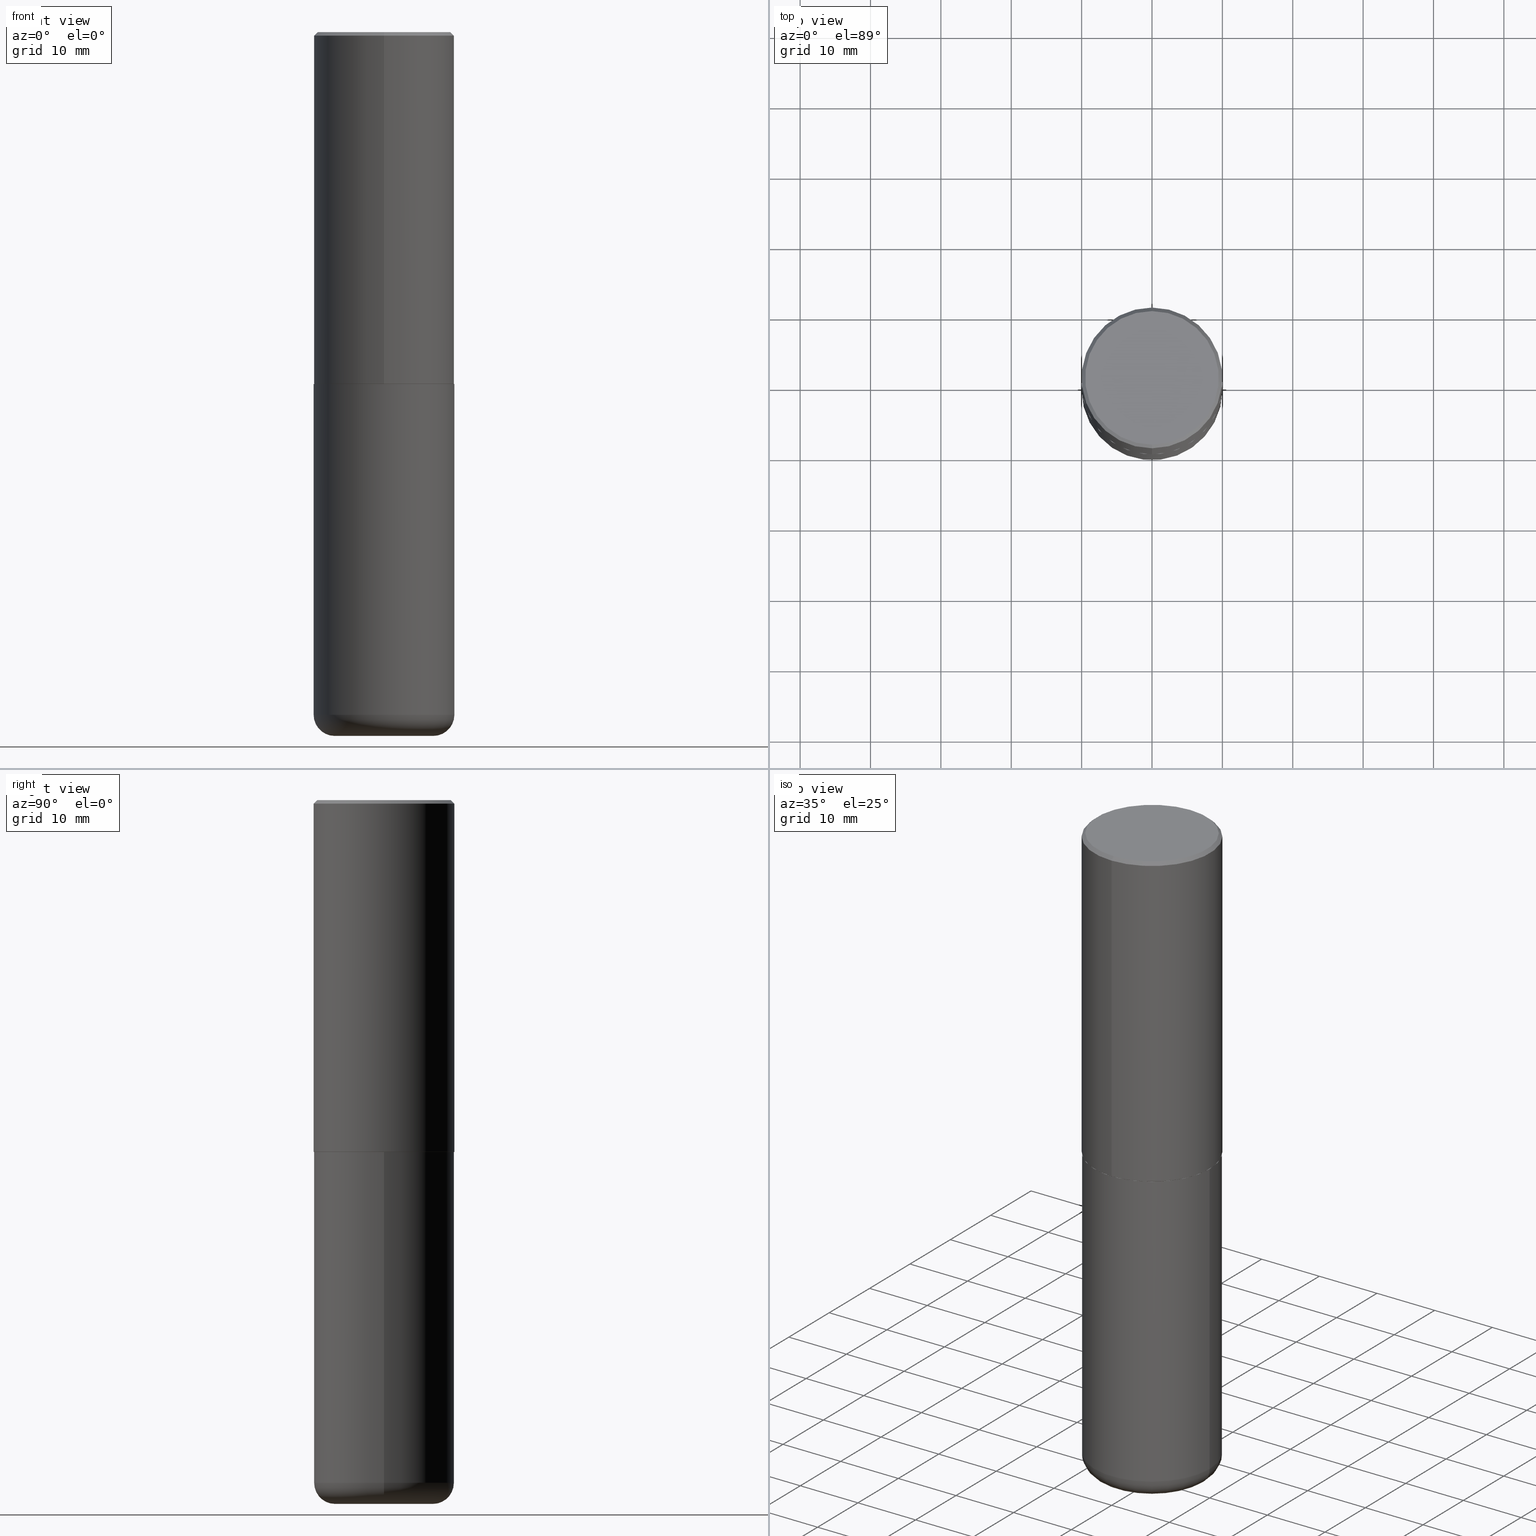
[diagram: canonical four-view strip — front | top / right | iso, engineering-drawing reading convention]
A machine part, canonical four-view strip (front | top / right | iso — engineering-drawing reading convention). The complete STEP part file that produces these views, byte-faithful:
ISO-10303-21;
HEADER;
FILE_DESCRIPTION (( 'STEP AP203' ),
    '1' );
FILE_NAME ('74651.STEP',
    '2024-03-06T15:51:51',
    ( '' ),
    ( '' ),
    'SwSTEP 2.0',
    'SolidWorks 2023',
    '' );
FILE_SCHEMA (( 'CONFIG_CONTROL_DESIGN' ));
ENDSEC;

DATA;
#1 = ADVANCED_FACE ( 'NONE', ( #131 ), #122, .F. ) ;
#2 = LINE ( 'NONE', #202, #216 ) ;
#3 = APPROVAL_PERSON_ORGANIZATION ( #313, #221, #405 ) ;
#4 = LOCAL_TIME ( 10, 51, 51.00000000000000000, #341 ) ;
#5 = PERSON_AND_ORGANIZATION_ROLE ( 'creator' ) ;
#6 = DIRECTION ( 'NONE',  ( -2.447902336346030930E-29, 3.487996385144809755E-15, 1.000000000000000000 ) ) ;
#7 = EDGE_CURVE ( 'NONE', #312, #61, #301, .T. ) ;
#8 = DATE_AND_TIME ( #64, #380 ) ;
#9 = CALENDAR_DATE ( 2024, 6, 3 ) ;
#10 = MANIFOLD_SOLID_BREP ( 'Body-Move/Copy2[1]', #310 ) ;
#11 = DIRECTION ( 'NONE',  ( 1.000000000000000000, -6.982962677686268288E-15, 4.883557194083112901E-29 ) ) ;
#12 = AXIS2_PLACEMENT_3D ( 'NONE', #68, #192, #317 ) ;
#13 = ORIENTED_EDGE ( 'NONE', *, *, #346, .F. ) ;
#14 = CARTESIAN_POINT ( 'NONE',  ( 4.818695749097162682E-29, -6.866120884157559141E-15, -1.968500000000000361 ) ) ;
#15 = VERTEX_POINT ( 'NONE', #129 ) ;
#16 = EDGE_LOOP ( 'NONE', ( #305, #397, #271, #363 ) ) ;
#17 = AXIS2_PLACEMENT_3D ( 'NONE', #347, #187, #23 ) ;
#18 = AXIS2_PLACEMENT_3D ( 'NONE', #382, #95, #65 ) ;
#19 = ORIENTED_EDGE ( 'NONE', *, *, #302, .T. ) ;
#20 = CC_DESIGN_PERSON_AND_ORGANIZATION_ASSIGNMENT ( #396, #42, ( #350 ) ) ;
#21 = CARTESIAN_POINT ( 'NONE',  ( 4.818695749097162682E-29, -6.866120884157559141E-15, -1.968500000000000361 ) ) ;
#22 = LINE ( 'NONE', #349, #233 ) ;
#23 = DIRECTION ( 'NONE',  ( 6.982962677686265922E-15, 1.000000000000000000, -3.487996385144809360E-15 ) ) ;
#24 = AXIS2_PLACEMENT_3D ( 'NONE', #158, #258, #222 ) ;
#25 = AXIS2_PLACEMENT_3D ( 'NONE', #197, #275, #251 ) ;
#26 = EDGE_CURVE ( 'NONE', #348, #312, #384, .T. ) ;
#27 = CARTESIAN_POINT ( 'NONE',  ( -2.632373081744936315E-15, -0.3737000000000000322, 1.238134234580041113E-15 ) ) ;
#28 = LINE ( 'NONE', #407, #203 ) ;
#29 = DIRECTION ( 'NONE',  ( -6.982962677686265922E-15, -1.000000000000000000, 3.487996385144809755E-15 ) ) ;
#30 = DIRECTION ( 'NONE',  ( -6.982962677686265133E-15, -1.000000000000000000, 3.478288761986584267E-15 ) ) ;
#31 = DIRECTION ( 'NONE',  ( -2.445468806185136597E-29, 3.491481338843145583E-15, 1.000000000000000000 ) ) ;
#32 = ORIENTED_EDGE ( 'NONE', *, *, #164, .F. ) ;
#33 = DIRECTION ( 'NONE',  ( 1.000000000000000000, -6.982962677686265922E-15, 4.876176775795935793E-29 ) ) ;
#34 = CONICAL_SURFACE ( 'NONE', #25, 0.3937000000000000499, 0.7853981633974476129 ) ;
#35 = VERTEX_POINT ( 'NONE', #415 ) ;
#36 = EDGE_CURVE ( 'NONE', #269, #348, #250, .T. ) ;
#37 = DIRECTION ( 'NONE',  ( -6.982962677686265922E-15, -1.000000000000000000, 3.487996385144809755E-15 ) ) ;
#38 = AXIS2_PLACEMENT_3D ( 'NONE', #274, #88, #63 ) ;
#39 = EDGE_CURVE ( 'NONE', #230, #367, #225, .T. ) ;
#40 = TOROIDAL_SURFACE ( 'NONE', #358, 0.2756000000000000116, 0.1181000000000000105 ) ;
#41 = DIRECTION ( 'NONE',  ( 4.937700262164543309E-15, 0.7071067811865444641, -0.7071067811865503483 ) ) ;
#42 = PERSON_AND_ORGANIZATION_ROLE ( 'design_supplier' ) ;
#43 = PERSON_AND_ORGANIZATION ( #240, #189 ) ;
#44 = VERTEX_POINT ( 'NONE', #27 ) ;
#45 = VECTOR ( 'NONE', #283, 39.37007874015748854 ) ;
#46 = VECTOR ( 'NONE', #339, 39.37007874015748854 ) ;
#47 = APPLICATION_PROTOCOL_DEFINITION ( 'international standard', 'config_control_design', 1994, #273 ) ;
#48 = EDGE_LOOP ( 'NONE', ( #113, #19 ) ) ;
#49 = COORDINATED_UNIVERSAL_TIME_OFFSET ( 5, 0, .BEHIND. ) ;
#50 = DIRECTION ( 'NONE',  ( 1.000000000000000000, 0.000000000000000000, 0.000000000000000000 ) ) ;
#51 = VERTEX_POINT ( 'NONE', #281 ) ;
#52 = ORIENTED_EDGE ( 'NONE', *, *, #353, .F. ) ;
#53 = PRODUCT_DEFINITION ( 'UNKNOWN', '', #350, #388 ) ;
#54 = AXIS2_PLACEMENT_3D ( 'NONE', #320, #31, #166 ) ;
#55 = CARTESIAN_POINT ( 'NONE',  ( 4.813905344975441835E-29, -6.872981015512731707E-15, -1.968500000000000139 ) ) ;
#56 = CARTESIAN_POINT ( 'NONE',  ( 2.749192406205083217E-15, 0.3936999999999999389, -0.02000000000000146105 ) ) ;
#57 = CYLINDRICAL_SURFACE ( 'NONE', #294, 0.3937000000000000499 ) ;
#58 = DIRECTION ( 'NONE',  ( -2.447902336346030930E-29, 3.487996385144809755E-15, 1.000000000000000000 ) ) ;
#59 = EDGE_CURVE ( 'NONE', #51, #35, #249, .T. ) ;
#60 = CARTESIAN_POINT ( 'NONE',  ( 0.2756000000000000116, -1.525812259887842581E-14, -3.818900000000000183 ) ) ;
#61 = VERTEX_POINT ( 'NONE', #228 ) ;
#62 = CIRCLE ( 'NONE', #71, 0.2756000000000000116 ) ;
#63 = DIRECTION ( 'NONE',  ( -6.982962677686265922E-15, -1.000000000000000000, 3.487996385144809360E-15 ) ) ;
#64 = CALENDAR_DATE ( 2024, 6, 3 ) ;
#65 = DIRECTION ( 'NONE',  ( 6.982962677686265133E-15, 1.000000000000000000, -3.491137977679279424E-15 ) ) ;
#66 = DIRECTION ( 'NONE',  ( -2.447902336346030930E-29, 3.487996385144809755E-15, 1.000000000000000000 ) ) ;
#67 = DIRECTION ( 'NONE',  ( -6.982962677686265133E-15, -1.000000000000000000, 3.478288761986584267E-15 ) ) ;
#68 = CARTESIAN_POINT ( 'NONE',  ( 4.895804672692082949E-31, -6.975992770289649092E-17, -0.02000000000000008715 ) ) ;
#69 = FACE_OUTER_BOUND ( 'NONE', #188, .T. ) ;
#70 = CLOSED_SHELL ( 'NONE', ( #272, #293, #118, #204, #208, #395, #1, #83 ) ) ;
#71 = AXIS2_PLACEMENT_3D ( 'NONE', #137, #356, #198 ) ;
#72 = FACE_OUTER_BOUND ( 'NONE', #100, .T. ) ;
#73 = DIRECTION ( 'NONE',  ( -2.447902336346030930E-29, 3.487996385144809360E-15, 1.000000000000000000 ) ) ;
#74 = APPROVAL ( #77, 'UNSPECIFIED' ) ;
#75 = DIRECTION ( 'NONE',  ( -2.445468806185136597E-29, 3.491481338843145583E-15, 1.000000000000000000 ) ) ;
#76 = CONICAL_SURFACE ( 'NONE', #87, 0.3926999999999999935, 0.7853981633974141952 ) ;
#77 = APPROVAL_STATUS ( 'not_yet_approved' ) ;
#78 = VERTEX_POINT ( 'NONE', #56 ) ;
#79 = EDGE_CURVE ( 'NONE', #309, #348, #107, .T. ) ;
#80 =( GEOMETRIC_REPRESENTATION_CONTEXT ( 3 ) GLOBAL_UNCERTAINTY_ASSIGNED_CONTEXT ( ( #182 ) ) GLOBAL_UNIT_ASSIGNED_CONTEXT ( ( #334, #366, #335 ) ) REPRESENTATION_CONTEXT ( 'NONE', 'WORKASPACE' ) );
#81 = APPROVAL_PERSON_ORGANIZATION ( #112, #247, #268 ) ;
#82 = ORIENTED_EDGE ( 'NONE', *, *, #200, .T. ) ;
#83 = ADVANCED_FACE ( 'NONE', ( #377 ), #218, .F. ) ;
#84 = CARTESIAN_POINT ( 'NONE',  ( 9.339000823940418668E-29, -1.333361808490808928E-14, -3.818900000000000183 ) ) ;
#85 = ORIENTED_EDGE ( 'NONE', *, *, #157, .F. ) ;
#86 = FACE_OUTER_BOUND ( 'NONE', #48, .T. ) ;
#87 = AXIS2_PLACEMENT_3D ( 'NONE', #14, #96, #368 ) ;
#88 = DIRECTION ( 'NONE',  ( -2.447902336346030930E-29, 3.487996385144809360E-15, 1.000000000000000000 ) ) ;
#89 = COORDINATED_UNIVERSAL_TIME_OFFSET ( 5, 0, .BEHIND. ) ;
#90 = DIRECTION ( 'NONE',  ( -2.445468806185136597E-29, 3.491481338843145583E-15, 1.000000000000000000 ) ) ;
#91 = ORIENTED_EDGE ( 'NONE', *, *, #322, .T. ) ;
#92 = DIRECTION ( 'NONE',  ( -1.000000000000000000, 6.982962677686265922E-15, -4.876176775795935793E-29 ) ) ;
#93 = CARTESIAN_POINT ( 'NONE',  ( 9.339000823940418668E-29, -1.333361808490808928E-14, -3.818900000000000183 ) ) ;
#94 = ORIENTED_EDGE ( 'NONE', *, *, #302, .F. ) ;
#95 = DIRECTION ( 'NONE',  ( 2.447902336346030930E-29, -3.487996385144809755E-15, -1.000000000000000000 ) ) ;
#96 = DIRECTION ( 'NONE',  ( -2.447902336346030930E-29, 3.487996385144809755E-15, 1.000000000000000000 ) ) ;
#97 = EDGE_CURVE ( 'NONE', #348, #309, #209, .T. ) ;
#98 = DIRECTION ( 'NONE',  ( -2.445468806185136877E-29, 3.491481338843145188E-15, 1.000000000000000000 ) ) ;
#99 = DIRECTION ( 'NONE',  ( -2.447902336346030930E-29, 3.487996385144809755E-15, 1.000000000000000000 ) ) ;
#100 = EDGE_LOOP ( 'NONE', ( #199, #82, #355, #282 ) ) ;
#101 = DIRECTION ( 'NONE',  ( 1.000000000000000000, -6.982962677686265922E-15, 4.876176775795935793E-29 ) ) ;
#102 = CIRCLE ( 'NONE', #54, 0.2756000000000000116 ) ;
#103 = CARTESIAN_POINT ( 'NONE',  ( 2.797406750687515181E-15, 0.3937000000000001609, -1.373224176831512065E-15 ) ) ;
#104 = EDGE_CURVE ( 'NONE', #35, #78, #143, .T. ) ;
#105 = CARTESIAN_POINT ( 'NONE',  ( 0.3937000000000000499, -1.608281049111317408E-14, -3.818900000000000183 ) ) ;
#106 = APPROVAL_DATE_TIME ( #333, #74 ) ;
#107 = CIRCLE ( 'NONE', #159, 0.3937000000000000499 ) ;
#108 = CIRCLE ( 'NONE', #176, 0.3737000000000000322 ) ;
#109 = COORDINATED_UNIVERSAL_TIME_OFFSET ( 5, 0, .BEHIND. ) ;
#110 = EDGE_CURVE ( 'NONE', #44, #35, #28, .T. ) ;
#111 = ORIENTED_EDGE ( 'NONE', *, *, #142, .T. ) ;
#112 = PERSON_AND_ORGANIZATION ( #240, #189 ) ;
#113 = ORIENTED_EDGE ( 'NONE', *, *, #7, .T. ) ;
#114 = FACE_OUTER_BOUND ( 'NONE', #156, .T. ) ;
#115 = CALENDAR_DATE ( 2024, 6, 3 ) ;
#116 = ORIENTED_EDGE ( 'NONE', *, *, #136, .T. ) ;
#117 = CIRCLE ( 'NONE', #149, 0.3937000000000000499 ) ;
#118 = ADVANCED_FACE ( 'NONE', ( #256 ), #332, .T. ) ;
#119 = PERSON_AND_ORGANIZATION_ROLE ( 'design_owner' ) ;
#120 = ORIENTED_EDGE ( 'NONE', *, *, #164, .T. ) ;
#121 = EDGE_LOOP ( 'NONE', ( #140, #213 ) ) ;
#122 = PLANE ( 'NONE',  #38 ) ;
#123 = CIRCLE ( 'NONE', #406, 0.3926999999999999935 ) ;
#124 = FACE_OUTER_BOUND ( 'NONE', #193, .T. ) ;
#125 = AXIS2_PLACEMENT_3D ( 'NONE', #330, #362, #304 ) ;
#126 = DIRECTION ( 'NONE',  ( -2.447902336346030930E-29, 3.487996385144809755E-15, 1.000000000000000000 ) ) ;
#127 = DIRECTION ( 'NONE',  ( -6.982962677686265922E-15, -1.000000000000000000, 3.487996385144809360E-15 ) ) ;
#128 = PRODUCT ( '74651', '74651', '', ( #308 ) ) ;
#129 = CARTESIAN_POINT ( 'NONE',  ( 2.679362779428220707E-15, 0.3737000000000000322, -1.368794263677189641E-15 ) ) ;
#130 = ORIENTED_EDGE ( 'NONE', *, *, #36, .T. ) ;
#131 = FACE_OUTER_BOUND ( 'NONE', #121, .T. ) ;
#132 = ORIENTED_EDGE ( 'NONE', *, *, #361, .T. ) ;
#133 = DIRECTION ( 'NONE',  ( -2.445468806185136597E-29, 3.491481338843145583E-15, 1.000000000000000000 ) ) ;
#134 = LOCAL_TIME ( 10, 51, 51.00000000000000000, #49 ) ;
#135 = VECTOR ( 'NONE', #98, 39.37007874015748143 ) ;
#136 = EDGE_CURVE ( 'NONE', #227, #230, #287, .T. ) ;
#137 = CARTESIAN_POINT ( 'NONE',  ( 9.627810689950883669E-29, -1.374596203102546341E-14, -3.937000000000000277 ) ) ;
#138 = CARTESIAN_POINT ( 'NONE',  ( 9.627810689950883669E-29, -1.374596203102546341E-14, -3.937000000000000277 ) ) ;
#139 = ORIENTED_EDGE ( 'NONE', *, *, #322, .F. ) ;
#140 = ORIENTED_EDGE ( 'NONE', *, *, #136, .F. ) ;
#141 = CARTESIAN_POINT ( 'NONE',  ( 1.599214952469751148E-45, -2.278708545868848433E-31, -6.533001454857425165E-17 ) ) ;
#142 = EDGE_CURVE ( 'NONE', #367, #51, #168, .T. ) ;
#143 = CIRCLE ( 'NONE', #12, 0.3937000000000000499 ) ;
#144 = DIRECTION ( 'NONE',  ( 1.000000000000000000, -6.982962677686265133E-15, 0.000000000000000000 ) ) ;
#145 = CARTESIAN_POINT ( 'NONE',  ( 0.000000000000000000, 0.000000000000000000, 0.000000000000000000 ) ) ;
#146 = APPROVAL_STATUS ( 'not_yet_approved' ) ;
#147 = ADVANCED_FACE ( 'NONE', ( #165 ), #285, .T. ) ;
#148 = PERSON_AND_ORGANIZATION_ROLE ( 'classification_officer' ) ;
#149 = AXIS2_PLACEMENT_3D ( 'NONE', #235, #75, #144 ) ;
#150 = EDGE_LOOP ( 'NONE', ( #85, #318 ) ) ;
#151 = DATE_AND_TIME ( #262, #134 ) ;
#152 = ORIENTED_EDGE ( 'NONE', *, *, #110, .F. ) ;
#153 = CC_DESIGN_PERSON_AND_ORGANIZATION_ASSIGNMENT ( #307, #148, ( #242 ) ) ;
#154 = ORIENTED_EDGE ( 'NONE', *, *, #266, .F. ) ;
#155 = DATE_AND_TIME ( #300, #398 ) ;
#156 = EDGE_LOOP ( 'NONE', ( #241, #120, #418, #245 ) ) ;
#157 = EDGE_CURVE ( 'NONE', #269, #170, #62, .T. ) ;
#158 = CARTESIAN_POINT ( 'NONE',  ( 9.339000823940418668E-29, -1.333361808490808928E-14, -3.818900000000000183 ) ) ;
#159 = AXIS2_PLACEMENT_3D ( 'NONE', #93, #186, #409 ) ;
#160 = CARTESIAN_POINT ( 'NONE',  ( 1.599214952469751148E-45, -2.278708545868848433E-31, -6.533001454857425165E-17 ) ) ;
#161 = CC_DESIGN_APPROVAL ( #247, ( #350 ) ) ;
#162 = DIRECTION ( 'NONE',  ( -2.447902336346030930E-29, 3.487996385144809360E-15, 1.000000000000000000 ) ) ;
#163 = DIRECTION ( 'NONE',  ( -4.851104656540959542E-15, -0.7071067811865493491, -0.7071067811865454633 ) ) ;
#164 = EDGE_CURVE ( 'NONE', #170, #309, #326, .T. ) ;
#165 = FACE_OUTER_BOUND ( 'NONE', #408, .T. ) ;
#166 = DIRECTION ( 'NONE',  ( 1.000000000000000000, -6.982962677686265922E-15, 0.000000000000000000 ) ) ;
#167 = CARTESIAN_POINT ( 'NONE',  ( 0.000000000000000000, 0.000000000000000000, 0.000000000000000000 ) ) ;
#168 = CIRCLE ( 'NONE', #270, 0.3937000000000002720 ) ;
#169 = CARTESIAN_POINT ( 'NONE',  ( -0.3937000000000000499, -1.053621133422057529E-14, -3.818900000000000183 ) ) ;
#170 = VERTEX_POINT ( 'NONE', #207 ) ;
#171 = AXIS2_PLACEMENT_3D ( 'NONE', #231, #357, #201 ) ;
#172 = EDGE_CURVE ( 'NONE', #15, #78, #22, .T. ) ;
#173 = CARTESIAN_POINT ( 'NONE',  ( -2.742209443527348687E-15, -0.3927000000000069324, -1.968499999999999028 ) ) ;
#174 = CC_DESIGN_APPROVAL ( #221, ( #53 ) ) ;
#175 = PERSON_AND_ORGANIZATION ( #240, #189 ) ;
#176 = AXIS2_PLACEMENT_3D ( 'NONE', #160, #58, #29 ) ;
#177 = EDGE_LOOP ( 'NONE', ( #215, #111, #246, #400 ) ) ;
#178 = APPLICATION_CONTEXT ( 'configuration controlled 3d designs of mechanical parts and assemblies' ) ;
#179 = CARTESIAN_POINT ( 'NONE',  ( 0.2756000000000000116, -1.567046654499579837E-14, -3.937000000000000277 ) ) ;
#180 = CC_DESIGN_DATE_AND_TIME_ASSIGNMENT ( #243, #265, ( #242 ) ) ;
#181 = SHAPE_DEFINITION_REPRESENTATION ( #345, #387 ) ;
#182 = UNCERTAINTY_MEASURE_WITH_UNIT (LENGTH_MEASURE( 1.000000000000000082E-05 ), #334, 'distance_accuracy_value', 'NONE');
#183 = ORIENTED_EDGE ( 'NONE', *, *, #191, .T. ) ;
#184 = CIRCLE ( 'NONE', #278, 0.3737000000000000322 ) ;
#185 = ADVANCED_FACE ( 'NONE', ( #114 ), #40, .T. ) ;
#186 = DIRECTION ( 'NONE',  ( -2.445468806185136597E-29, 3.491481338843145583E-15, 1.000000000000000000 ) ) ;
#187 = DIRECTION ( 'NONE',  ( 2.447902336346030930E-29, -3.487996385144809360E-15, -1.000000000000000000 ) ) ;
#188 = EDGE_LOOP ( 'NONE', ( #196, #132, #325, #279 ) ) ;
#189 = ORGANIZATION ( 'UNSPECIFIED', 'UNSPECIFIED', '' ) ;
#190 = FACE_OUTER_BOUND ( 'NONE', #410, .T. ) ;
#191 = EDGE_CURVE ( 'NONE', #44, #15, #108, .T. ) ;
#192 = DIRECTION ( 'NONE',  ( -2.447902336346030930E-29, 3.487996385144809755E-15, 1.000000000000000000 ) ) ;
#193 = EDGE_LOOP ( 'NONE', ( #152, #13, #375, #239 ) ) ;
#194 = CARTESIAN_POINT ( 'NONE',  ( 4.818695749097162682E-29, -6.866120884157559141E-15, -1.968500000000000361 ) ) ;
#195 = CARTESIAN_POINT ( 'NONE',  ( 0.3937000000000000499, -9.622173421717814924E-15, -1.968500000000000139 ) ) ;
#196 = ORIENTED_EDGE ( 'NONE', *, *, #353, .T. ) ;
#197 = CARTESIAN_POINT ( 'NONE',  ( 4.895804672692082949E-31, -6.975992770289649092E-17, -0.02000000000000008715 ) ) ;
#198 = DIRECTION ( 'NONE',  ( 1.000000000000000000, -6.982962677686265922E-15, 0.000000000000000000 ) ) ;
#199 = ORIENTED_EDGE ( 'NONE', *, *, #39, .F. ) ;
#200 = EDGE_CURVE ( 'NONE', #230, #227, #123, .T. ) ;
#201 = DIRECTION ( 'NONE',  ( -6.982962677686265133E-15, -1.000000000000000000, 3.491137977679279424E-15 ) ) ;
#202 = CARTESIAN_POINT ( 'NONE',  ( -0.3937000000000000499, 2.797406750687514786E-15, -1.936584745033356735E-29 ) ) ;
#203 = VECTOR ( 'NONE', #163, 39.37007874015748854 ) ;
#204 = ADVANCED_FACE ( 'NONE', ( #124 ), #34, .T. ) ;
#205 = DIRECTION ( 'NONE',  ( -2.445468806185136597E-29, 3.491481338843145583E-15, 1.000000000000000000 ) ) ;
#206 = DATE_TIME_ROLE ( 'creation_date' ) ;
#207 = CARTESIAN_POINT ( 'NONE',  ( -0.2756000000000000116, -1.116195879274560421E-14, -3.937000000000000277 ) ) ;
#208 = ADVANCED_FACE ( 'NONE', ( #257 ), #323, .T. ) ;
#209 = CIRCLE ( 'NONE', #24, 0.3937000000000000499 ) ;
#210 = CC_DESIGN_APPROVAL ( #74, ( #242 ) ) ;
#211 = ORIENTED_EDGE ( 'NONE', *, *, #7, .F. ) ;
#212 = CARTESIAN_POINT ( 'NONE',  ( 0.000000000000000000, 0.000000000000000000, 0.000000000000000000 ) ) ;
#213 = ORIENTED_EDGE ( 'NONE', *, *, #200, .F. ) ;
#214 = ORIENTED_EDGE ( 'NONE', *, *, #79, .F. ) ;
#215 = ORIENTED_EDGE ( 'NONE', *, *, #361, .F. ) ;
#216 = VECTOR ( 'NONE', #296, 39.37007874015748143 ) ;
#217 = PLANE ( 'NONE',  #383 ) ;
#218 = PLANE ( 'NONE',  #17 ) ;
#219 = FACE_OUTER_BOUND ( 'NONE', #401, .T. ) ;
#220 = CARTESIAN_POINT ( 'NONE',  ( -0.2756000000000000116, -1.137536230515325427E-14, -3.818900000000000183 ) ) ;
#221 = APPROVAL ( #276, 'UNSPECIFIED' ) ;
#222 = DIRECTION ( 'NONE',  ( 1.000000000000000000, -6.982962677686267499E-15, 0.000000000000000000 ) ) ;
#223 = EDGE_LOOP ( 'NONE', ( #290, #183 ) ) ;
#224 = AXIS2_PLACEMENT_3D ( 'NONE', #220, #324, #264 ) ;
#225 = LINE ( 'NONE', #354, #45 ) ;
#226 = CARTESIAN_POINT ( 'NONE',  ( 0.000000000000000000, 0.000000000000000000, 0.000000000000000000 ) ) ;
#227 = VERTEX_POINT ( 'NONE', #369 ) ;
#228 = CARTESIAN_POINT ( 'NONE',  ( -0.3937000000000000499, -7.305892799522895709E-15, -1.968500000000000139 ) ) ;
#229 = DIRECTION ( 'NONE',  ( 2.438088387897960049E-29, -3.491481338843145188E-15, -1.000000000000000000 ) ) ;
#230 = VERTEX_POINT ( 'NONE', #254 ) ;
#231 = CARTESIAN_POINT ( 'NONE',  ( 4.895804672692082949E-31, -6.975992770289649092E-17, -0.02000000000000008715 ) ) ;
#232 = ADVANCED_FACE ( 'NONE', ( #86 ), #217, .F. ) ;
#233 = VECTOR ( 'NONE', #41, 39.37007874015748854 ) ;
#234 = DIRECTION ( 'NONE',  ( -1.000000000000000000, 6.982962677686265922E-15, -4.876176775795935793E-29 ) ) ;
#235 = CARTESIAN_POINT ( 'NONE',  ( 4.813905344975441835E-29, -6.872981015512731707E-15, -1.968500000000000139 ) ) ;
#236 = ADVANCED_FACE ( 'NONE', ( #190 ), #311, .T. ) ;
#237 = CARTESIAN_POINT ( 'NONE',  ( 4.816247846760815671E-29, -6.862632887772413316E-15, -1.967500000000000027 ) ) ;
#238 = VECTOR ( 'NONE', #73, 39.37007874015748143 ) ;
#239 = ORIENTED_EDGE ( 'NONE', *, *, #389, .T. ) ;
#240 = PERSON ( 'UNSPECIFIED', 'UNSPECIFIED', 'UNSPECIFIED', ('UNSPECIFIED'), ('UNSPECIFIED'), ('UNSPECIFIED') ) ;
#241 = ORIENTED_EDGE ( 'NONE', *, *, #157, .T. ) ;
#242 = SECURITY_CLASSIFICATION ( '', '', #390 ) ;
#243 = DATE_AND_TIME ( #115, #364 ) ;
#244 = AXIS2_PLACEMENT_3D ( 'NONE', #374, #90, #33 ) ;
#245 = ORIENTED_EDGE ( 'NONE', *, *, #36, .F. ) ;
#246 = ORIENTED_EDGE ( 'NONE', *, *, #59, .T. ) ;
#247 = APPROVAL ( #146, 'UNSPECIFIED' ) ;
#248 = DIRECTION ( 'NONE',  ( -2.447902336346030930E-29, 3.487996385144809755E-15, 1.000000000000000000 ) ) ;
#249 = LINE ( 'NONE', #371, #381 ) ;
#250 = CIRCLE ( 'NONE', #331, 0.1180999999999999966 ) ;
#251 = DIRECTION ( 'NONE',  ( 6.982962677686265133E-15, 1.000000000000000000, -3.491137977679279424E-15 ) ) ;
#252 = DIRECTION ( 'NONE',  ( -6.982962677686265922E-15, -1.000000000000000000, 3.469453890861393601E-15 ) ) ;
#253 = CC_DESIGN_PERSON_AND_ORGANIZATION_ASSIGNMENT ( #299, #338, ( #350 ) ) ;
#254 = CARTESIAN_POINT ( 'NONE',  ( 2.793854037008762797E-15, 0.3926999999999931101, -1.968500000000001693 ) ) ;
#255 = DIRECTION ( 'NONE',  ( -6.982962677686266711E-15, -1.000000000000000000, 3.491481338843145583E-15 ) ) ;
#256 = FACE_OUTER_BOUND ( 'NONE', #16, .T. ) ;
#257 = FACE_OUTER_BOUND ( 'NONE', #177, .T. ) ;
#258 = DIRECTION ( 'NONE',  ( -2.445468806185136597E-29, 3.491481338843145583E-15, 1.000000000000000000 ) ) ;
#259 = DIRECTION ( 'NONE',  ( -6.982962677686265922E-15, -1.000000000000000000, 3.469453890861393601E-15 ) ) ;
#260 = AXIS2_PLACEMENT_3D ( 'NONE', #145, #99, #385 ) ;
#261 = ORIENTED_EDGE ( 'NONE', *, *, #26, .F. ) ;
#262 = CALENDAR_DATE ( 2024, 6, 3 ) ;
#263 = AXIS2_PLACEMENT_3D ( 'NONE', #84, #205, #11 ) ;
#264 = DIRECTION ( 'NONE',  ( -1.000000000000000000, 7.105427357601005014E-15, 0.000000000000000000 ) ) ;
#265 = DATE_TIME_ROLE ( 'classification_date' ) ;
#266 = EDGE_CURVE ( 'NONE', #227, #51, #297, .T. ) ;
#267 = ORIENTED_EDGE ( 'NONE', *, *, #26, .T. ) ;
#268 = APPROVAL_ROLE ( '' ) ;
#269 = VERTEX_POINT ( 'NONE', #179 ) ;
#270 = AXIS2_PLACEMENT_3D ( 'NONE', #277, #126, #252 ) ;
#271 = ORIENTED_EDGE ( 'NONE', *, *, #104, .T. ) ;
#272 = ADVANCED_FACE ( 'NONE', ( #306 ), #76, .T. ) ;
#273 = APPLICATION_CONTEXT ( 'configuration controlled 3d designs of mechanical parts and assemblies' ) ;
#274 = CARTESIAN_POINT ( 'NONE',  ( 4.818695749097161561E-29, -6.866120884157558352E-15, -1.968500000000000139 ) ) ;
#275 = DIRECTION ( 'NONE',  ( 2.447902336346030930E-29, -3.487996385144809755E-15, -1.000000000000000000 ) ) ;
#276 = APPROVAL_STATUS ( 'not_yet_approved' ) ;
#277 = CARTESIAN_POINT ( 'NONE',  ( 4.816247846760815671E-29, -6.862632887772413316E-15, -1.967500000000000027 ) ) ;
#278 = AXIS2_PLACEMENT_3D ( 'NONE', #141, #6, #37 ) ;
#279 = ORIENTED_EDGE ( 'NONE', *, *, #59, .F. ) ;
#280 = DIRECTION ( 'NONE',  ( -2.447902336346030930E-29, 3.487996385144809755E-15, 1.000000000000000000 ) ) ;
#281 = CARTESIAN_POINT ( 'NONE',  ( -2.749192406205036674E-15, -0.3937000000000070998, -1.967499999999998694 ) ) ;
#282 = ORIENTED_EDGE ( 'NONE', *, *, #142, .F. ) ;
#283 = DIRECTION ( 'NONE',  ( 5.024295867787889629E-15, 0.7071067811865257013, 0.7071067811865691111 ) ) ;
#284 = MANIFOLD_SOLID_BREP ( 'Body-Move/Copy2[2]', #70 ) ;
#285 = CYLINDRICAL_SURFACE ( 'NONE', #244, 0.3937000000000000499 ) ;
#286 = CARTESIAN_POINT ( 'NONE',  ( 2.797406750687540030E-15, 0.3936999999999934441, -1.967500000000001359 ) ) ;
#287 = CIRCLE ( 'NONE', #343, 0.3926999999999999935 ) ;
#288 = ADVANCED_FACE ( 'NONE', ( #219 ), #57, .T. ) ;
#289 = PLANE ( 'NONE',  #340 ) ;
#290 = ORIENTED_EDGE ( 'NONE', *, *, #346, .T. ) ;
#291 = COORDINATED_UNIVERSAL_TIME_OFFSET ( 5, 0, .BEHIND. ) ;
#292 = FACE_OUTER_BOUND ( 'NONE', #150, .T. ) ;
#293 = ADVANCED_FACE ( 'NONE', ( #69 ), #359, .T. ) ;
#294 = AXIS2_PLACEMENT_3D ( 'NONE', #226, #327, #101 ) ;
#295 = CC_DESIGN_SECURITY_CLASSIFICATION ( #242, ( #350 ) ) ;
#296 = DIRECTION ( 'NONE',  ( -2.445468806185136877E-29, 3.491481338843145188E-15, 1.000000000000000000 ) ) ;
#297 = LINE ( 'NONE', #173, #46 ) ;
#298 = APPROVAL_DATE_TIME ( #151, #247 ) ;
#299 = PERSON_AND_ORGANIZATION ( #240, #189 ) ;
#300 = CALENDAR_DATE ( 2024, 6, 3 ) ;
#301 = CIRCLE ( 'NONE', #404, 0.3937000000000000499 ) ;
#302 = EDGE_CURVE ( 'NONE', #61, #312, #117, .T. ) ;
#303 = CONICAL_SURFACE ( 'NONE', #125, 0.3926999999999999935, 0.7853981633974141952 ) ;
#304 = DIRECTION ( 'NONE',  ( -6.982962677686265133E-15, -1.000000000000000000, 3.478288761986584267E-15 ) ) ;
#305 = ORIENTED_EDGE ( 'NONE', *, *, #191, .F. ) ;
#306 = FACE_OUTER_BOUND ( 'NONE', #321, .T. ) ;
#307 = PERSON_AND_ORGANIZATION ( #240, #189 ) ;
#308 = MECHANICAL_CONTEXT ( 'NONE', #273, 'mechanical' ) ;
#309 = VERTEX_POINT ( 'NONE', #169 ) ;
#310 = CLOSED_SHELL ( 'NONE', ( #288, #185, #232, #147, #236, #372 ) ) ;
#311 = TOROIDAL_SURFACE ( 'NONE', #263, 0.2756000000000000116, 0.1181000000000000105 ) ;
#312 = VERTEX_POINT ( 'NONE', #195 ) ;
#313 = PERSON_AND_ORGANIZATION ( #240, #189 ) ;
#314 = CARTESIAN_POINT ( 'NONE',  ( 0.3937000000000000499, -2.749192406205083217E-15, 1.919750796630860172E-29 ) ) ;
#315 = ORIENTED_EDGE ( 'NONE', *, *, #365, .T. ) ;
#316 = AXIS2_PLACEMENT_3D ( 'NONE', #212, #342, #50 ) ;
#317 = DIRECTION ( 'NONE',  ( -6.982962677686265133E-15, -1.000000000000000000, 3.491137977679279424E-15 ) ) ;
#318 = ORIENTED_EDGE ( 'NONE', *, *, #365, .F. ) ;
#319 = DIRECTION ( 'NONE',  ( -2.447902336346030930E-29, 3.487996385144809755E-15, 1.000000000000000000 ) ) ;
#320 = CARTESIAN_POINT ( 'NONE',  ( 9.627810689950883669E-29, -1.374596203102546341E-14, -3.937000000000000277 ) ) ;
#321 = EDGE_LOOP ( 'NONE', ( #116, #394, #52, #154 ) ) ;
#322 = EDGE_CURVE ( 'NONE', #309, #61, #2, .T. ) ;
#323 = CYLINDRICAL_SURFACE ( 'NONE', #360, 0.3937000000000001609 ) ;
#324 = DIRECTION ( 'NONE',  ( 7.105427357601001859E-15, 1.000000000000000000, -3.491481338843145583E-15 ) ) ;
#325 = ORIENTED_EDGE ( 'NONE', *, *, #104, .F. ) ;
#326 = CIRCLE ( 'NONE', #224, 0.1180999999999999966 ) ;
#327 = DIRECTION ( 'NONE',  ( -2.445468806185136597E-29, 3.491481338843145583E-15, 1.000000000000000000 ) ) ;
#328 = CC_DESIGN_DATE_AND_TIME_ASSIGNMENT ( #8, #206, ( #53 ) ) ;
#329 = DIMENSIONAL_EXPONENTS ( 1.000000000000000000, 0.000000000000000000, 0.000000000000000000, 0.000000000000000000, 0.000000000000000000, 0.000000000000000000, 0.000000000000000000 ) ;
#330 = CARTESIAN_POINT ( 'NONE',  ( 4.818695749097162682E-29, -6.866120884157559141E-15, -1.968500000000000361 ) ) ;
#331 = AXIS2_PLACEMENT_3D ( 'NONE', #60, #255, #413 ) ;
#332 = CONICAL_SURFACE ( 'NONE', #18, 0.3937000000000000499, 0.7853981633974476129 ) ;
#333 = DATE_AND_TIME ( #9, #4 ) ;
#334 =( CONVERSION_BASED_UNIT ( 'INCH', #393 ) LENGTH_UNIT ( ) NAMED_UNIT ( #329 ) );
#335 =( NAMED_UNIT ( * ) SI_UNIT ( $, .STERADIAN. ) SOLID_ANGLE_UNIT ( ) );
#336 = CC_DESIGN_PERSON_AND_ORGANIZATION_ASSIGNMENT ( #43, #5, ( #53 ) ) ;
#337 = APPROVAL_DATE_TIME ( #155, #221 ) ;
#338 = PERSON_AND_ORGANIZATION_ROLE ( 'creator' ) ;
#339 = DIRECTION ( 'NONE',  ( -4.937700262164378437E-15, -0.7071067811865208164, 0.7071067811865739960 ) ) ;
#340 = AXIS2_PLACEMENT_3D ( 'NONE', #138, #229, #234 ) ;
#341 = COORDINATED_UNIVERSAL_TIME_OFFSET ( 5, 0, .BEHIND. ) ;
#342 = DIRECTION ( 'NONE',  ( 0.000000000000000000, 0.000000000000000000, 1.000000000000000000 ) ) ;
#343 = AXIS2_PLACEMENT_3D ( 'NONE', #194, #319, #30 ) ;
#344 = CARTESIAN_POINT ( 'NONE',  ( 4.813905344975441835E-29, -6.872981015512731707E-15, -1.968500000000000139 ) ) ;
#345 = PRODUCT_DEFINITION_SHAPE ( 'NONE', 'NONE',  #53 ) ;
#346 = EDGE_CURVE ( 'NONE', #15, #44, #184, .T. ) ;
#347 = CARTESIAN_POINT ( 'NONE',  ( 2.609533152651357803E-15, 0.3737000000000000322, -1.336129256402902755E-15 ) ) ;
#348 = VERTEX_POINT ( 'NONE', #105 ) ;
#349 = CARTESIAN_POINT ( 'NONE',  ( 2.749192406205083217E-15, 0.3936999999999999389, -0.02000000000000146105 ) ) ;
#350 = PRODUCT_DEFINITION_FORMATION_WITH_SPECIFIED_SOURCE ( 'ANY', '', #128, .NOT_KNOWN. ) ;
#351 = DIRECTION ( 'NONE',  ( -2.445468806185136597E-29, 3.491481338843145583E-15, 1.000000000000000000 ) ) ;
#352 = CIRCLE ( 'NONE', #171, 0.3937000000000000499 ) ;
#353 = EDGE_CURVE ( 'NONE', #51, #367, #416, .T. ) ;
#354 = CARTESIAN_POINT ( 'NONE',  ( 2.790301323329961110E-15, 0.3926999999999931101, -1.968500000000001693 ) ) ;
#355 = ORIENTED_EDGE ( 'NONE', *, *, #266, .T. ) ;
#356 = DIRECTION ( 'NONE',  ( -2.445468806185136597E-29, 3.491481338843145583E-15, 1.000000000000000000 ) ) ;
#357 = DIRECTION ( 'NONE',  ( -2.447902336346030930E-29, 3.487996385144809755E-15, 1.000000000000000000 ) ) ;
#358 = AXIS2_PLACEMENT_3D ( 'NONE', #376, #133, #378 ) ;
#359 = CYLINDRICAL_SURFACE ( 'NONE', #260, 0.3937000000000001609 ) ;
#360 = AXIS2_PLACEMENT_3D ( 'NONE', #167, #248, #127 ) ;
#361 = EDGE_CURVE ( 'NONE', #367, #78, #386, .T. ) ;
#362 = DIRECTION ( 'NONE',  ( -2.447902336346030930E-29, 3.487996385144809755E-15, 1.000000000000000000 ) ) ;
#363 = ORIENTED_EDGE ( 'NONE', *, *, #172, .F. ) ;
#364 = LOCAL_TIME ( 10, 51, 51.00000000000000000, #109 ) ;
#365 = EDGE_CURVE ( 'NONE', #170, #269, #102, .T. ) ;
#366 =( NAMED_UNIT ( * ) PLANE_ANGLE_UNIT ( ) SI_UNIT ( $, .RADIAN. ) );
#367 = VERTEX_POINT ( 'NONE', #286 ) ;
#368 = DIRECTION ( 'NONE',  ( -6.982962677686265133E-15, -1.000000000000000000, 3.478288761986584267E-15 ) ) ;
#369 = CARTESIAN_POINT ( 'NONE',  ( -2.742209443527348687E-15, -0.3927000000000069324, -1.968499999999999028 ) ) ;
#370 = AXIS2_PLACEMENT_3D ( 'NONE', #237, #66, #259 ) ;
#371 = CARTESIAN_POINT ( 'NONE',  ( -2.749192406205084005E-15, -0.3937000000000001609, 1.373224176831512065E-15 ) ) ;
#372 = ADVANCED_FACE ( 'NONE', ( #292 ), #289, .T. ) ;
#373 = DIRECTION ( 'NONE',  ( 2.438088387897960049E-29, -3.491481338843145188E-15, -1.000000000000000000 ) ) ;
#374 = CARTESIAN_POINT ( 'NONE',  ( 0.000000000000000000, 0.000000000000000000, 0.000000000000000000 ) ) ;
#375 = ORIENTED_EDGE ( 'NONE', *, *, #172, .T. ) ;
#376 = CARTESIAN_POINT ( 'NONE',  ( 9.339000823940418668E-29, -1.333361808490808928E-14, -3.818900000000000183 ) ) ;
#377 = FACE_OUTER_BOUND ( 'NONE', #223, .T. ) ;
#378 = DIRECTION ( 'NONE',  ( 1.000000000000000000, -6.982962677686268288E-15, 4.883557194083112901E-29 ) ) ;
#379 = CC_DESIGN_PERSON_AND_ORGANIZATION_ASSIGNMENT ( #399, #119, ( #128 ) ) ;
#380 = LOCAL_TIME ( 10, 51, 51.00000000000000000, #291 ) ;
#381 = VECTOR ( 'NONE', #162, 39.37007874015748143 ) ;
#382 = CARTESIAN_POINT ( 'NONE',  ( 4.895804672692082949E-31, -6.975992770289649092E-17, -0.02000000000000008715 ) ) ;
#383 = AXIS2_PLACEMENT_3D ( 'NONE', #55, #373, #92 ) ;
#384 = LINE ( 'NONE', #314, #135 ) ;
#385 = DIRECTION ( 'NONE',  ( -6.982962677686265922E-15, -1.000000000000000000, 3.487996385144809360E-15 ) ) ;
#386 = LINE ( 'NONE', #103, #238 ) ;
#387 = ADVANCED_BREP_SHAPE_REPRESENTATION ( '74651', ( #10, #284, #316 ), #80 ) ;
#388 = DESIGN_CONTEXT ( 'detailed design', #178, 'design' ) ;
#389 = EDGE_CURVE ( 'NONE', #78, #35, #352, .T. ) ;
#390 = SECURITY_CLASSIFICATION_LEVEL ( 'unclassified' ) ;
#391 =( LENGTH_UNIT ( ) NAMED_UNIT ( * ) SI_UNIT ( $, .METRE. ) );
#392 = APPROVAL_ROLE ( '' ) ;
#393 = LENGTH_MEASURE_WITH_UNIT ( LENGTH_MEASURE( 0.02539999999999999897 ), #391 );
#394 = ORIENTED_EDGE ( 'NONE', *, *, #39, .T. ) ;
#395 = ADVANCED_FACE ( 'NONE', ( #72 ), #303, .T. ) ;
#396 = PERSON_AND_ORGANIZATION ( #240, #189 ) ;
#397 = ORIENTED_EDGE ( 'NONE', *, *, #110, .T. ) ;
#398 = LOCAL_TIME ( 10, 51, 51.00000000000000000, #89 ) ;
#399 = PERSON_AND_ORGANIZATION ( #240, #189 ) ;
#400 = ORIENTED_EDGE ( 'NONE', *, *, #389, .F. ) ;
#401 = EDGE_LOOP ( 'NONE', ( #414, #91, #211, #261 ) ) ;
#402 = DIRECTION ( 'NONE',  ( 1.000000000000000000, -6.982962677686265133E-15, 0.000000000000000000 ) ) ;
#403 = APPROVAL_PERSON_ORGANIZATION ( #175, #74, #392 ) ;
#404 = AXIS2_PLACEMENT_3D ( 'NONE', #344, #351, #402 ) ;
#405 = APPROVAL_ROLE ( '' ) ;
#406 = AXIS2_PLACEMENT_3D ( 'NONE', #21, #280, #67 ) ;
#407 = CARTESIAN_POINT ( 'NONE',  ( -2.700978061722651252E-15, -0.3937000000000001054, -0.01999999999999870978 ) ) ;
#408 = EDGE_LOOP ( 'NONE', ( #139, #417, #267, #94 ) ) ;
#409 = DIRECTION ( 'NONE',  ( 1.000000000000000000, -6.982962677686267499E-15, 0.000000000000000000 ) ) ;
#410 = EDGE_LOOP ( 'NONE', ( #32, #315, #130, #214 ) ) ;
#411 = PRODUCT_RELATED_PRODUCT_CATEGORY ( 'detail', '', ( #128 ) ) ;
#412 = APPLICATION_PROTOCOL_DEFINITION ( 'international standard', 'config_control_design', 1994, #178 ) ;
#413 = DIRECTION ( 'NONE',  ( 1.000000000000000000, -6.982962677686273021E-15, 0.000000000000000000 ) ) ;
#414 = ORIENTED_EDGE ( 'NONE', *, *, #97, .T. ) ;
#415 = CARTESIAN_POINT ( 'NONE',  ( -2.700978061722651252E-15, -0.3937000000000001054, -0.01999999999999870978 ) ) ;
#416 = CIRCLE ( 'NONE', #370, 0.3937000000000002720 ) ;
#417 = ORIENTED_EDGE ( 'NONE', *, *, #79, .T. ) ;
#418 = ORIENTED_EDGE ( 'NONE', *, *, #97, .F. ) ;
ENDSEC;
END-ISO-10303-21;
